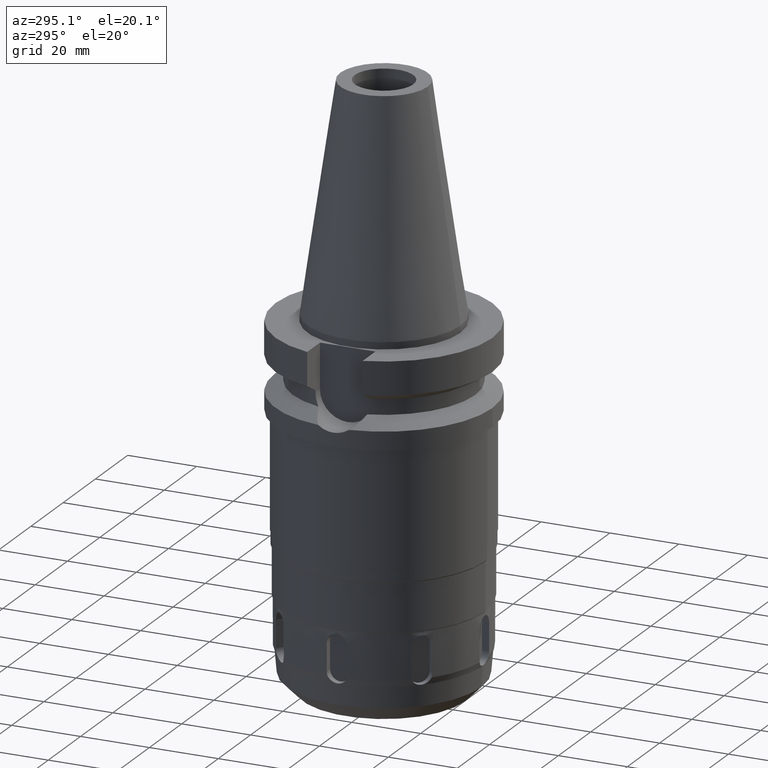
[diagram: clean part render]
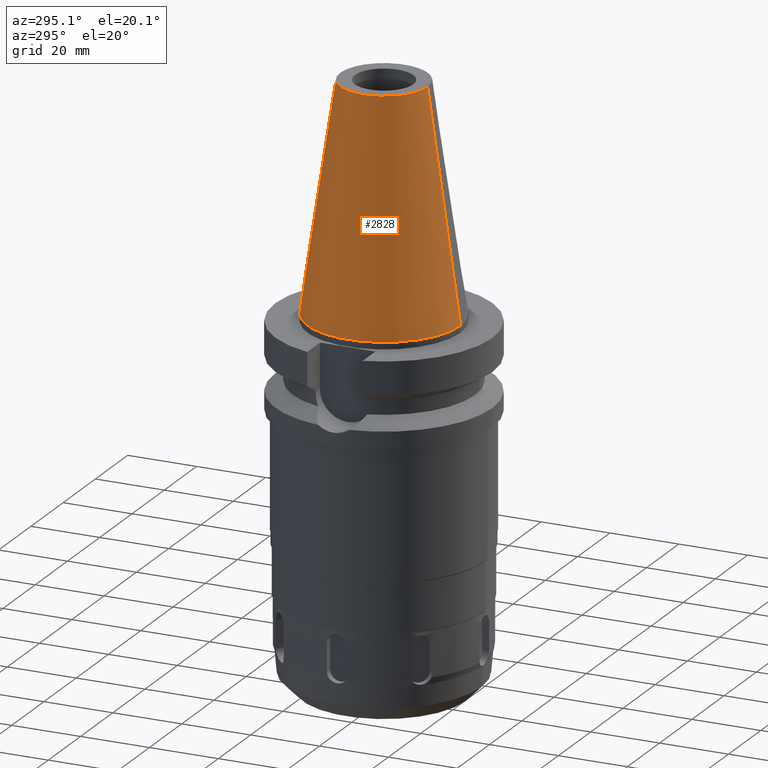
[diagram: same view with one face highlighted and labeled with its STEP entity id]
A machine part, auxiliary view. The second image highlights one B-rep face of the part: STEP entity #2828.
In plain terms, the highlighted conical surface has half-angle 8.297 deg.
Its self-contained STEP definition (entity closure, byte-faithful):
#17=CARTESIAN_POINT('',(0.E0,1.625106302469E-14,6.54E1));
#18=DIRECTION('',(0.E0,0.E0,-1.E0));
#19=DIRECTION('',(0.E0,-1.E0,0.E0));
#20=AXIS2_PLACEMENT_3D('',#17,#18,#19);
#50=DIRECTION('',(0.E0,-1.443043893540E-1,-9.895333461856E-1));
#51=VECTOR('',#50,6.609175956738E1);
#52=CARTESIAN_POINT('',(0.E0,-1.268766899430E1,6.54E1));
#53=LINE('',#52,#51);
#57=CARTESIAN_POINT('',(0.E0,1.625106302469E-14,2.842170943040E-14));
#58=DIRECTION('',(0.E0,0.E0,-1.E0));
#59=DIRECTION('',(0.E0,-1.E0,0.E0));
#60=AXIS2_PLACEMENT_3D('',#57,#58,#59);
#65=DIRECTION('',(0.E0,1.443043893540E-1,-9.895333461856E-1));
#66=VECTOR('',#65,6.609175956738E1);
#67=CARTESIAN_POINT('',(0.E0,1.268766899430E1,6.54E1));
#68=LINE('',#67,#66);
#2445=CARTESIAN_POINT('',(0.E0,-1.268766899430E1,6.54E1));
#2446=CARTESIAN_POINT('',(0.E0,1.268766899430E1,6.54E1));
#2447=VERTEX_POINT('',#2445);
#2448=VERTEX_POINT('',#2446);
#2718=CARTESIAN_POINT('',(0.E0,2.2225E1,6.394884621841E-14));
#2719=VERTEX_POINT('',#2718);
#2720=CARTESIAN_POINT('',(0.E0,-2.2225E1,6.394884621841E-14));
#2721=VERTEX_POINT('',#2720);
#2814=CARTESIAN_POINT('',(0.E0,1.625106302469E-14,3.27E1));
#2815=DIRECTION('',(0.E0,0.E0,-1.E0));
#2816=DIRECTION('',(0.E0,-1.E0,0.E0));
#2817=AXIS2_PLACEMENT_3D('',#2814,#2815,#2816);
#2818=CONICAL_SURFACE('',#2817,1.745633449715E1,8.297E0);
#2820=ORIENTED_EDGE('',*,*,#2819,.F.);
#2821=ORIENTED_EDGE('',*,*,#2801,.F.);
#2823=ORIENTED_EDGE('',*,*,#2822,.T.);
#2825=ORIENTED_EDGE('',*,*,#2824,.T.);
#2826=EDGE_LOOP('',(#2820,#2821,#2823,#2825));
#2827=FACE_OUTER_BOUND('',#2826,.F.);
#21=CIRCLE('',#20,1.268766899430E1);
#61=CIRCLE('',#60,2.2225E1);
#2801=EDGE_CURVE('',#2447,#2448,#21,.T.);
#2819=EDGE_CURVE('',#2448,#2719,#68,.T.);
#2822=EDGE_CURVE('',#2447,#2721,#53,.T.);
#2824=EDGE_CURVE('',#2721,#2719,#61,.T.);
#2828=ADVANCED_FACE('',(#2827),#2818,.T.);